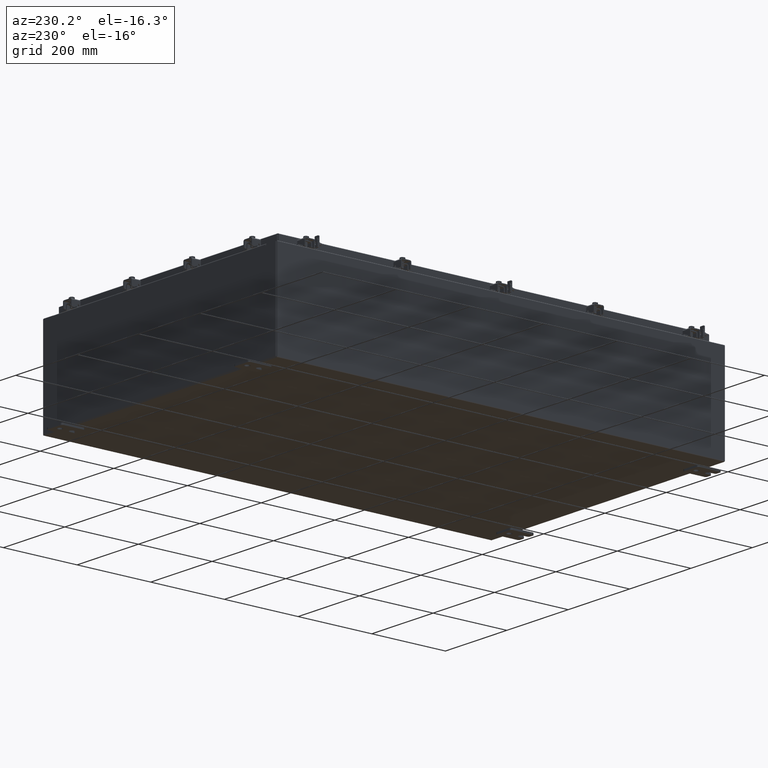
[diagram: clean part render]
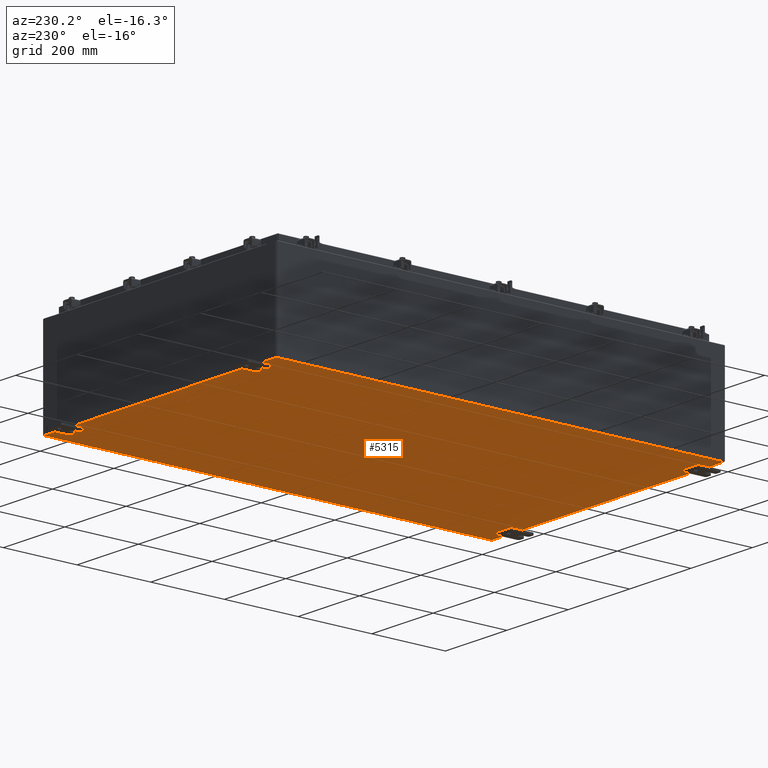
[diagram: same view with one face highlighted and labeled with its STEP entity id]
A machine part, auxiliary view. The second image highlights one B-rep face of the part: STEP entity #5315.
In plain terms, the highlighted planar face has unit normal (0, 0, -1).
Its self-contained STEP definition (entity closure, byte-faithful):
#1620 = LINE ( 'NONE', #7403, #10869 ) ;
#2447 = DIRECTION ( 'NONE',  ( -1.000000000000000000, -0.0000000000000000000, -0.0000000000000000000 ) ) ;
#2477 = EDGE_CURVE ( 'NONE', #5271, #22441, #6608, .T. ) ;
#2920 = CARTESIAN_POINT ( 'NONE',  ( -14.91230000000000200, -23.92529999999998200, -0.07469999999999994700 ) ) ;
#3074 = DIRECTION ( 'NONE',  ( 0.0000000000000000000, 0.0000000000000000000, -1.000000000000000000 ) ) ;
#3638 = EDGE_CURVE ( 'NONE', #5271, #10354, #21215, .T. ) ;
#4281 = CARTESIAN_POINT ( 'NONE',  ( -15.00000000000000400, 23.92530000000000400, -0.07470000000000000300 ) ) ;
#4502 = VECTOR ( 'NONE', #2447, 39.37007874015748100 ) ;
#5271 = VERTEX_POINT ( 'NONE', #2920 ) ;
#5315 = ADVANCED_FACE ( 'NONE', ( #20432 ), #8258, .T. ) ;
#6059 = CARTESIAN_POINT ( 'NONE',  ( -14.91230000000000200, 23.92529999999998900, -0.07470000000000000300 ) ) ;
#6608 = LINE ( 'NONE', #8463, #15263 ) ;
#6837 = EDGE_LOOP ( 'NONE', ( #22484, #18623, #13088, #12423 ) ) ;
#7403 = CARTESIAN_POINT ( 'NONE',  ( 14.91229999999999800, 23.92530000000000000, -0.07470000000000300000 ) ) ;
#7561 = CARTESIAN_POINT ( 'NONE',  ( 14.91229999999999800, 23.92529999999998900, -0.07470000000000300000 ) ) ;
#7912 = VECTOR ( 'NONE', #18198, 39.37007874015748100 ) ;
#8258 = PLANE ( 'NONE',  #18546 ) ;
#8463 = CARTESIAN_POINT ( 'NONE',  ( -14.91230000000000200, -23.92529999999998900, -0.07469999999999994700 ) ) ;
#9139 = LINE ( 'NONE', #4281, #4502 ) ;
#10201 = DIRECTION ( 'NONE',  ( -0.0000000000000000000, 1.000000000000000000, -0.0000000000000000000 ) ) ;
#10354 = VERTEX_POINT ( 'NONE', #15558 ) ;
#10869 = VECTOR ( 'NONE', #21291, 39.37007874015748100 ) ;
#11316 = CARTESIAN_POINT ( 'NONE',  ( -15.00000000000000400, -23.92530000000000000, -0.07470000000000000300 ) ) ;
#12423 = ORIENTED_EDGE ( 'NONE', *, *, #15708, .T. ) ;
#13088 = ORIENTED_EDGE ( 'NONE', *, *, #19210, .F. ) ;
#13556 = VERTEX_POINT ( 'NONE', #7561 ) ;
#15212 = DIRECTION ( 'NONE',  ( -1.000000000000000000, 0.0000000000000000000, -0.0000000000000000000 ) ) ;
#15263 = VECTOR ( 'NONE', #10201, 39.37007874015748100 ) ;
#15558 = CARTESIAN_POINT ( 'NONE',  ( 14.91229999999999800, -23.92529999999999600, -0.07470000000000000300 ) ) ;
#15708 = EDGE_CURVE ( 'NONE', #13556, #10354, #1620, .T. ) ;
#18198 = DIRECTION ( 'NONE',  ( 1.000000000000000000, 1.456985596620940400E-016, 0.0000000000000000000 ) ) ;
#18546 = AXIS2_PLACEMENT_3D ( 'NONE', #22142, #3074, #15212 ) ;
#18623 = ORIENTED_EDGE ( 'NONE', *, *, #2477, .T. ) ;
#19210 = EDGE_CURVE ( 'NONE', #13556, #22441, #9139, .T. ) ;
#20432 = FACE_OUTER_BOUND ( 'NONE', #6837, .T. ) ;
#21215 = LINE ( 'NONE', #11316, #7912 ) ;
#21291 = DIRECTION ( 'NONE',  ( -0.0000000000000000000, -1.000000000000000000, 8.208677865577646300E-017 ) ) ;
#22142 = CARTESIAN_POINT ( 'NONE',  ( 0.0000000000000000000, 0.0000000000000000000, -0.07470000000000000300 ) ) ;
#22441 = VERTEX_POINT ( 'NONE', #6059 ) ;
#22484 = ORIENTED_EDGE ( 'NONE', *, *, #3638, .F. ) ;